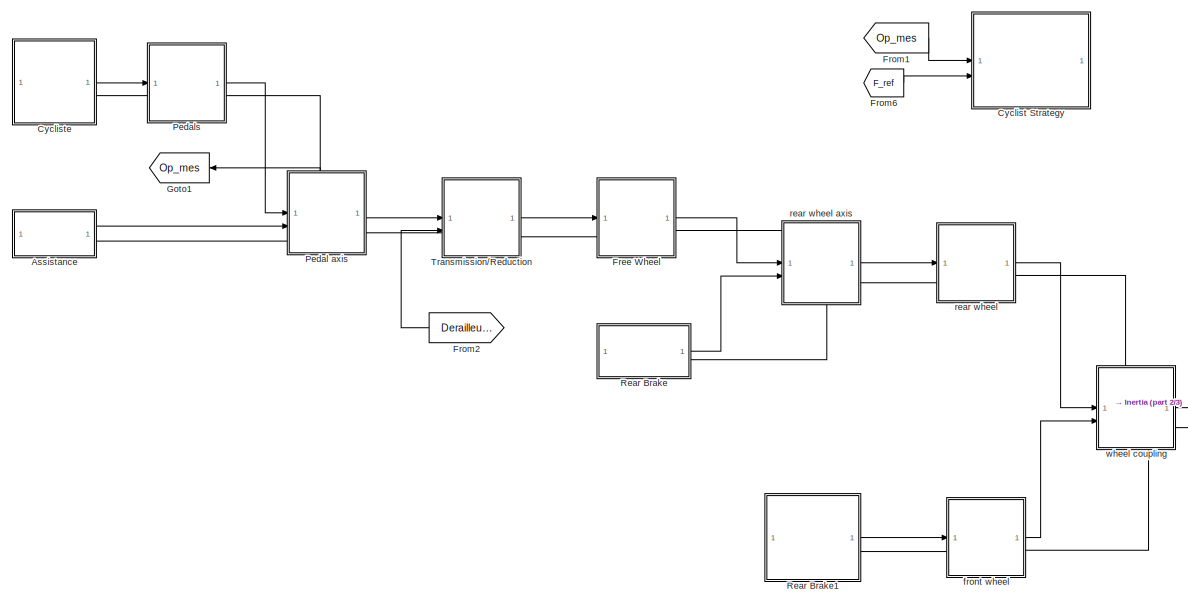
[diagram: root canvas - part 1/3, top center region]
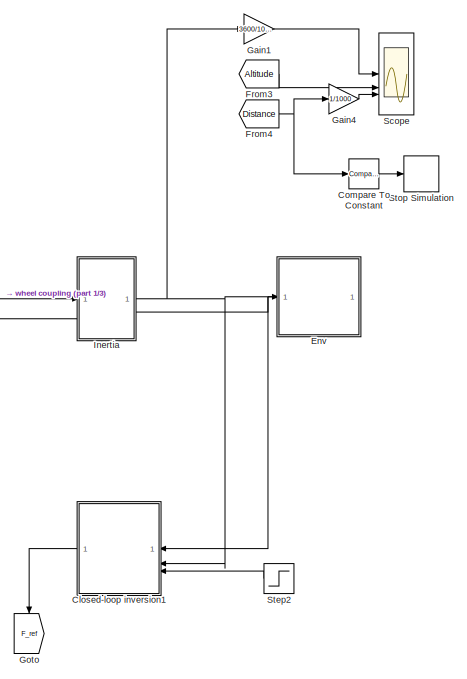
[diagram: root canvas - part 2/3, middle right region]
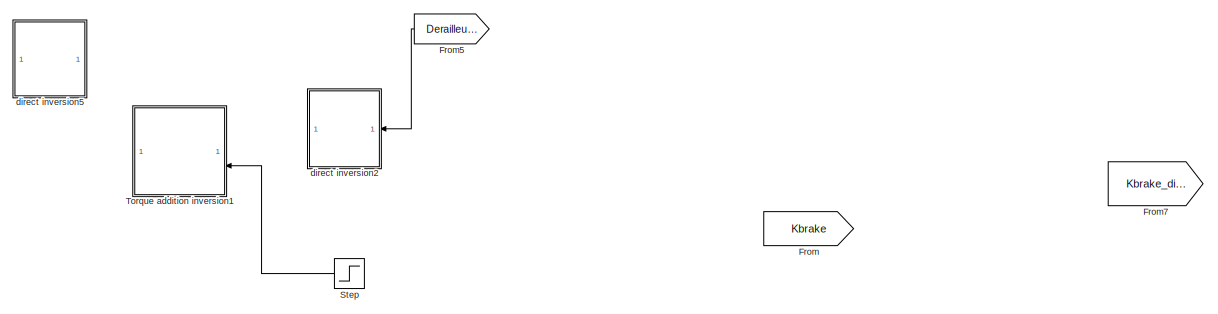
[diagram: root canvas - part 3/3, full width, bottom band]
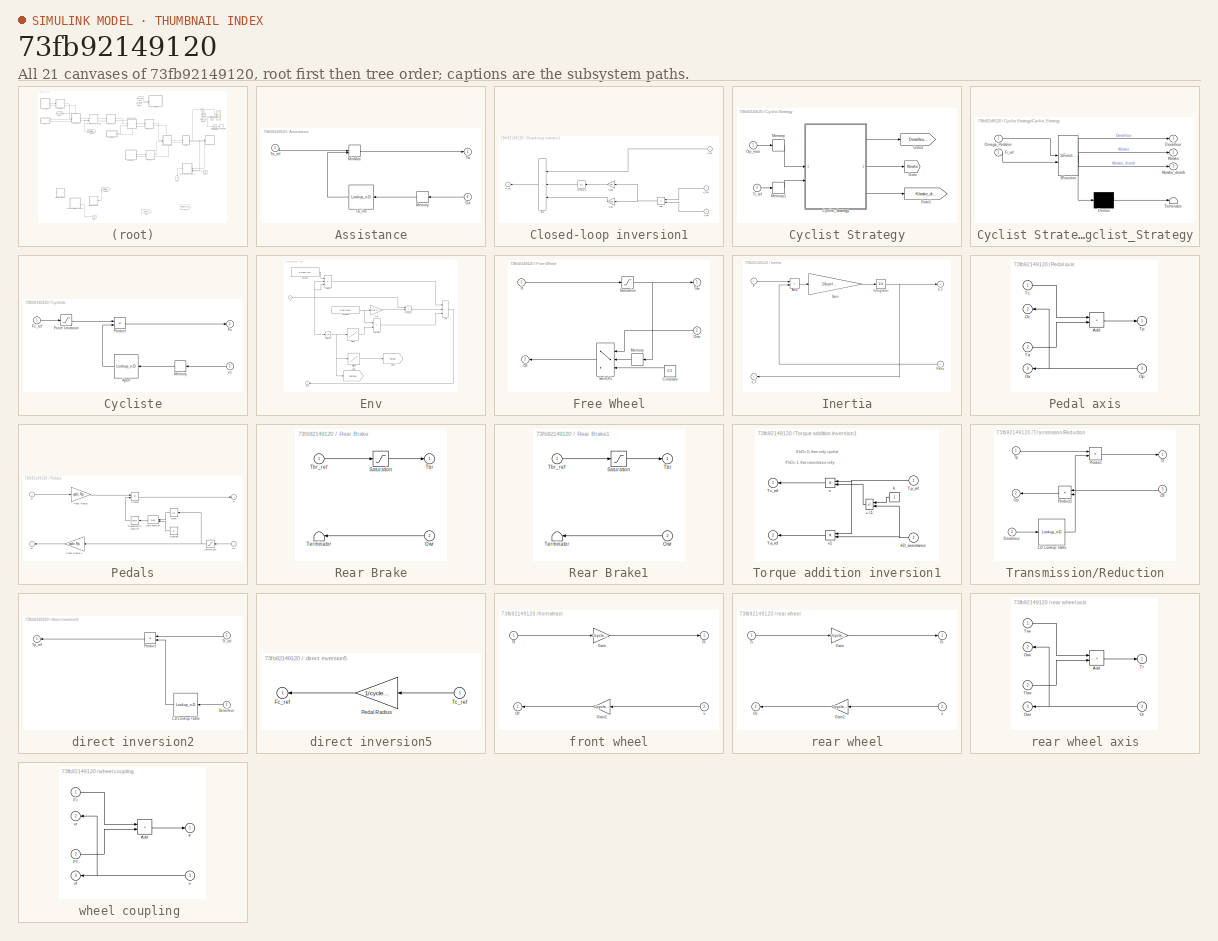
[diagram: thumbnail index - all 21 canvases of the model, root first then tree order]
MODEL slx_73fb92149120
KIND model
CONFIG AbsTol = auto
CONFIG EnableMultiTasking = on
CONFIG FixedStep = 1e-3
CONFIG InitFcn = Initialisation
CONFIG MaxStep = 0.01
CONFIG MinStep = auto
CONFIG RelTol = 1e-3
CONFIG SampleTimeConstraint = Unconstrained
CONFIG SolverName = ode45
CONFIG StartTime = 0
CONFIG StopTime = 4000
BLOCK [SubSystem] Assistance
  PortSchema = {"entries":[{"content":{"sides":[{"content":{"connectorIds":["In1"]},"type":"ConnectorPlacement.EquallySpacedRectSide","uuid":"b56ffd92-574d-4607-acc6-16a2c75d443c"},{"content":{"connectorIds":["Out1","In2"],"side":"RIGHT"},"type":"ConnectorPlacement.EquallySpacedRectSide","uuid":"f6ecf908-ce32-455d-b07b-39dcc8c170af"},{"content":{"side":"TOP"},"type":"ConnectorPlacement.EquallySpacedRectSide","uu...<+228ch>  <repeated x4 — deduplicated; at blocks: Assistance, Cycliste, Rear Brake, Rear Brake1>
BLOCK [Memory] Assistance/Memory
  NameLocation = top
BLOCK [MinMax] Assistance/MinMax
  Inputs = 2
BLOCK [Inport] Assistance/Oa
  Port = 2
BLOCK [Outport] Assistance/Ta
  InitialOutput = 0
  VectorParamsAs1DForOutWhenUnconnected = off
BLOCK [Lookup_n-D] Assistance/Ta_lim
  BreakpointsForDimension1 = assist.Op_ref
  InputPortMap = u0
  InternalRulePriority = Speed
  NameLocation = top
  NumberOfTableDimensions = 1
  RndMeth = Simplest
  Table = assist.Ta_lim
BLOCK [Inport] Assistance/Ta_ref
  NameLocation = top
BLOCK [SubSystem] Closed-loop inversion1
BLOCK [Sum] Closed-loop inversion1/Add
  IconShape = rectangular
  Inputs = -+
  NameLocation = top
BLOCK [Sum] Closed-loop inversion1/Add1
  IconShape = rectangular
  Inputs = +++
  NameLocation = top
BLOCK [Inport] Closed-loop inversion1/F_res
  NameLocation = top
BLOCK [Outport] Closed-loop inversion1/Fr_ref
  InitialOutput = 0
  VectorParamsAs1DForOutWhenUnconnected = off
BLOCK [Gain] Closed-loop inversion1/Gain
  Gain = 200.0
  NameLocation = top
BLOCK [Gain] Closed-loop inversion1/Gain1
  Gain = 10.0
  NameLocation = top
BLOCK [Integrator] Closed-loop inversion1/Integrator
  LimitOutput = on
  LowerSaturationLimit = -50
  NameLocation = top
  UpperSaturationLimit = 50
BLOCK [Inport] Closed-loop inversion1/V_mes
  NameLocation = top
  Port = 2
BLOCK [Inport] Closed-loop inversion1/V_ref
  Port = 3
BLOCK [Reference] Compare To Constant  REF=simulink/Logic and Bit
Operations/Compare
To Constant
  SourceBlock = simulink/Logic and Bit\nOperations/Compare\nTo Constant
  SourceType = Compare To Constant
BLOCK [SubSystem] Cyclist Strategy
  NameLocation = top
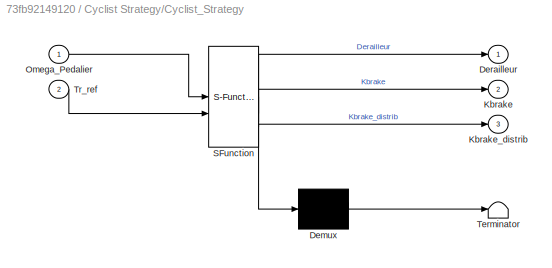
BLOCK [SubSystem] Cyclist Strategy/Cyclist_Strategy
  ErrorFcn = Stateflow.Translate.translate
  PermitHierarchicalResolution = ExplicitOnly
  SFBlockType = MATLAB Function
  TreatAsAtomicUnit = on
BLOCK [Demux] Cyclist Strategy/Cyclist_Strategy/ Demux 
  Outputs = 1
BLOCK [S-Function] Cyclist Strategy/Cyclist_Strategy/ SFunction 
  EnableBusSupport = off
  FunctionName = sf_sfun
  PortCounts = [2 4]
  SFcnIsStateOwnerBlock = off
  SFunctionDeploymentMode = off
  Tag = Stateflow S-Function 2
BLOCK [Terminator] Cyclist Strategy/Cyclist_Strategy/ Terminator 
BLOCK [Outport] Cyclist Strategy/Cyclist_Strategy/Derailleur
  VectorParamsAs1DForOutWhenUnconnected = off
BLOCK [Outport] Cyclist Strategy/Cyclist_Strategy/Kbrake
  Port = 2
  VectorParamsAs1DForOutWhenUnconnected = off
BLOCK [Outport] Cyclist Strategy/Cyclist_Strategy/Kbrake_distrib
  Port = 3
  VectorParamsAs1DForOutWhenUnconnected = off
BLOCK [Inport] Cyclist Strategy/Cyclist_Strategy/Omega_Pedalier
BLOCK [Inport] Cyclist Strategy/Cyclist_Strategy/Tr_ref
  Port = 2
BLOCK [Goto] Cyclist Strategy/Goto
  GotoTag = Kbrake
  TagVisibility = global
BLOCK [Goto] Cyclist Strategy/Goto1
  GotoTag = Kbrake_distribution
  TagVisibility = global
BLOCK [Goto] Cyclist Strategy/Goto2
  GotoTag = Derailleur_Def
  TagVisibility = global
BLOCK [Memory] Cyclist Strategy/Memory
BLOCK [Memory] Cyclist Strategy/Memory1
BLOCK [Inport] Cyclist Strategy/Op_mes
BLOCK [Inport] Cyclist Strategy/Tr_ref
  Port = 2
BLOCK [SubSystem] Cycliste
BLOCK [Outport] Cycliste/Fc
  InitialOutput = 0
  VectorParamsAs1DForOutWhenUnconnected = off
BLOCK [Inport] Cycliste/Fc_ref
  NameLocation = top
BLOCK [Saturate] Cycliste/Force limitation
  UpperLimit = cyclist.Fc_max
BLOCK [Lookup_n-D] Cycliste/Kperf
  BreakpointsForDimension1 = cyclist.Vref_ms
  InputPortMap = u0
  InternalRulePriority = Speed
  NameLocation = top
  NumberOfTableDimensions = 1
  RndMeth = Simplest
  Table = cyclist.Kperf
BLOCK [Memory] Cycliste/Memory
  NameLocation = top
BLOCK [Product] Cycliste/Product
BLOCK [Inport] Cycliste/vc
  Port = 2
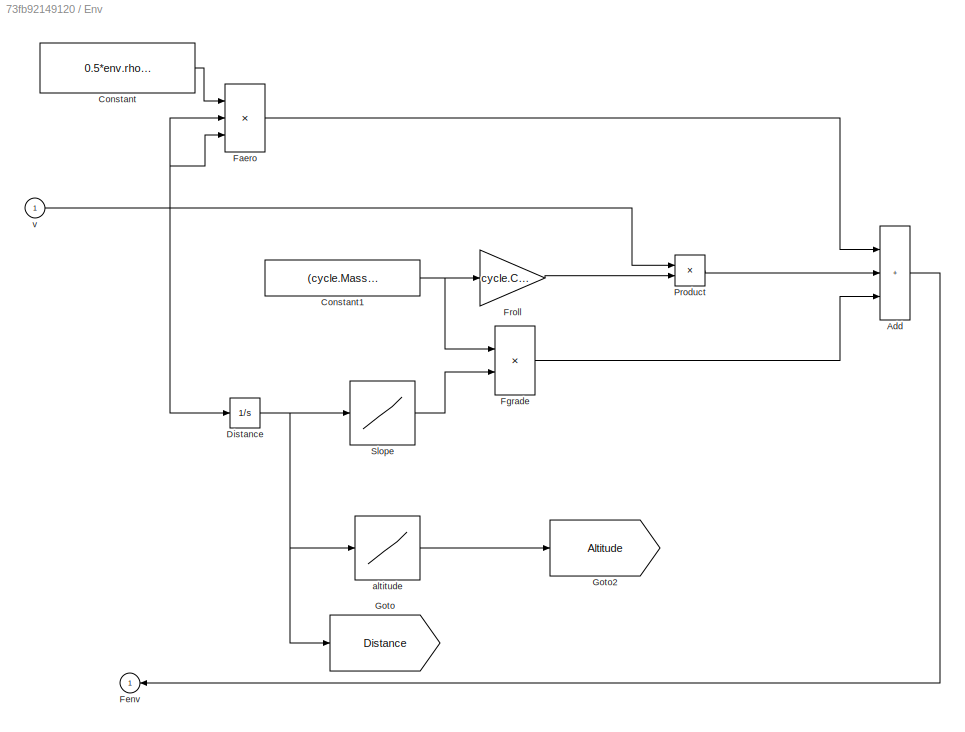
BLOCK [SubSystem] Env
  PortSchema = {"entries":[{"content":{"sides":[{"content":{"connectorIds":["In1","Out1"]},"type":"ConnectorPlacement.EquallySpacedRectSide","uuid":"efb178e0-fd11-4fb7-a64b-c244e17ad944"},{"content":{"side":"RIGHT"},"type":"ConnectorPlacement.EquallySpacedRectSide","uuid":"048bc3de-e770-4428-8bc0-9ded25c58069"},{"content":{"side":"TOP"},"type":"ConnectorPlacement.EquallySpacedRectSide","uuid":"cc8ec17b-6c54-4d76...<+205ch>
BLOCK [Sum] Env/Add
  IconShape = rectangular
  Inputs = +++
BLOCK [Constant] Env/Constant
  Value = 0.5*env.rho_air*cyclist.Scx
BLOCK [Constant] Env/Constant1
  Value = (cycle.Mass+cyclist.Mass)*env.g
BLOCK [Integrator] Env/Distance
BLOCK [Product] Env/Faero
  Inputs = 3
  RndMeth = Zero
BLOCK [Outport] Env/Fenv
  InitialOutput = 0
  NameLocation = top
  VectorParamsAs1DForOutWhenUnconnected = off
BLOCK [Product] Env/Fgrade
  RndMeth = Zero
BLOCK [Gain] Env/Froll
  Gain = cycle.Crr
BLOCK [Goto] Env/Goto
  GotoTag = Distance
  TagVisibility = global
BLOCK [Goto] Env/Goto2
  GotoTag = Altitude
  TagVisibility = global
BLOCK [Product] Env/Product
  RndMeth = Zero
BLOCK [Lookup] Env/Slope
  InputValues = env.Position
  LookUpMeth = Interpolation-Use End Values
  SaturateOnIntegerOverflow = off
  Table = env.Slope
BLOCK [Lookup] Env/altitude
  InputValues = env.Position
  LookUpMeth = Interpolation-Use End Values
  SaturateOnIntegerOverflow = off
  Table = env.Altitude
BLOCK [Inport] Env/v
BLOCK [SubSystem] Free Wheel
  PortSchema = {"entries":[{"content":{"sides":[{"content":{"connectorIds":["In1","Out2"]},"type":"ConnectorPlacement.EquallySpacedRectSide","uuid":"b9cb5e2e-d323-42b7-849c-39be921832eb"},{"content":{"connectorIds":["Out1","In2"],"side":"RIGHT"},"type":"ConnectorPlacement.EquallySpacedRectSide","uuid":"457911f2-4e07-4896-a1c0-9331a364b989"},{"content":{"side":"TOP"},"type":"ConnectorPlacement.EquallySpacedRectSi...<+235ch>  <repeated x5 — deduplicated; at blocks: Free Wheel, Inertia, Pedals, front wheel, rear wheel>
BLOCK [Constant] Free Wheel/Constant
  NameLocation = top
  Value = 0.0
BLOCK [Memory] Free Wheel/Memory
  NameLocation = top
BLOCK [Outport] Free Wheel/Of
  InitialOutput = 0
  Port = 2
  VectorParamsAs1DForOutWhenUnconnected = off
BLOCK [Inport] Free Wheel/Orw
  Port = 2
BLOCK [Saturate] Free Wheel/Saturation
  LowerLimit = -1e-6
  UpperLimit = Inf
BLOCK [Switch] Free Wheel/Switch1
  InputSameDT = off
  NameLocation = top
  SaturateOnIntegerOverflow = off
BLOCK [Inport] Free Wheel/Tf
BLOCK [Outport] Free Wheel/Trw
  InitialOutput = 0
  VectorParamsAs1DForOutWhenUnconnected = off
BLOCK [From] From
  GotoTag = Kbrake
  NameLocation = top
  TagVisibility = global
BLOCK [From] From1
  GotoTag = Op_mes
BLOCK [From] From2
  GotoTag = Derailleur_Def
  NameLocation = top
  TagVisibility = global
BLOCK [From] From3
  GotoTag = Altitude
  TagVisibility = global
BLOCK [From] From4
  GotoTag = Distance
  TagVisibility = global
BLOCK [From] From5
  GotoTag = Derailleur_Def
  NameLocation = top
  TagVisibility = global
BLOCK [From] From6
  GotoTag = F_ref
  TagVisibility = global
BLOCK [From] From7
  GotoTag = Kbrake_distribution
  NameLocation = top
  TagVisibility = global
BLOCK [Gain] Gain1
  Gain = 3600/1000
BLOCK [Gain] Gain4
  Gain = 1/1000
BLOCK [Goto] Goto
  GotoTag = F_ref
  NameLocation = left
  TagVisibility = global
BLOCK [Goto] Goto1
  GotoTag = Op_mes
  NameLocation = top
BLOCK [SubSystem] Inertia
BLOCK [Sum] Inertia/Add
  IconShape = rectangular
  Inputs = +-
BLOCK [Inport] Inertia/F
BLOCK [Inport] Inertia/Fenv
  Port = 2
BLOCK [Gain] Inertia/Gain
  Gain = 1/(cycle.Mass+cyclist.Mass)
BLOCK [Integrator] Inertia/Integrator
BLOCK [Outport] Inertia/v_1
  InitialOutput = 0
  VectorParamsAs1DForOutWhenUnconnected = off
BLOCK [Outport] Inertia/v_2
  InitialOutput = 0
  Port = 2
  VectorParamsAs1DForOutWhenUnconnected = off
BLOCK [SubSystem] Pedal axis
  PortSchema = {"entries":[{"content":{"sides":[{"content":{"connectorIds":["In1","Out2","In2","Out3"]},"type":"ConnectorPlacement.EquallySpacedRectSide","uuid":"f16583be-6f77-4af9-a4a7-96a07c773c93"},{"content":{"connectorIds":["Out1","In3"],"side":"RIGHT"},"type":"ConnectorPlacement.EquallySpacedRectSide","uuid":"40fed825-d3a5-4924-86df-6135f0ba2178"},{"content":{"side":"TOP"},"type":"ConnectorPlacement.Equall...<+248ch>  <repeated x3 — deduplicated; at blocks: Pedal axis, rear wheel axis, wheel coupling>
BLOCK [Sum] Pedal axis/Add
  IconShape = rectangular
BLOCK [Outport] Pedal axis/Oa
  InitialOutput = 0
  Port = 3
  VectorParamsAs1DForOutWhenUnconnected = off
BLOCK [Outport] Pedal axis/Oc
  InitialOutput = 0
  NameLocation = top
  Port = 2
  VectorParamsAs1DForOutWhenUnconnected = off
BLOCK [Inport] Pedal axis/Op
  Port = 3
BLOCK [Inport] Pedal axis/Ta
  NameLocation = top
  Port = 2
BLOCK [Inport] Pedal axis/Tc
BLOCK [Outport] Pedal axis/Tp
  InitialOutput = 0
  VectorParamsAs1DForOutWhenUnconnected = off
BLOCK [SubSystem] Pedals
BLOCK [Constant] Pedals/Constant
  NameLocation = top
  Value = pi
BLOCK [Inport] Pedals/Fc
BLOCK [Math] Pedals/Math Function
  NameLocation = top
  Operator = mod
  SignedPower = on
BLOCK [Inport] Pedals/Oc
  Port = 2
BLOCK [Gain] Pedals/Pedal Radius
  Gain = cycle.Rp
BLOCK [Gain] Pedals/Pedal Radius 1
  Gain = cycle.Rp
  NameLocation = top
BLOCK [Product] Pedals/Product
BLOCK [Saturate] Pedals/Saturation1
  LowerLimit = 1e-3
  NameLocation = top
  UpperLimit = Inf
BLOCK [Outport] Pedals/Tc
  InitialOutput = 0
  VectorParamsAs1DForOutWhenUnconnected = off
BLOCK [Trigonometry] Pedals/Trigonometric Function
  NameLocation = top
BLOCK [Integrator] Pedals/alpha
  InitialCondition = pi/2
  NameLocation = top
BLOCK [Outport] Pedals/vc
  InitialOutput = 0
  Port = 2
  VectorParamsAs1DForOutWhenUnconnected = off
BLOCK [SubSystem] Rear Brake
BLOCK [Inport] Rear Brake/Owr
  NameLocation = top
  Port = 2
BLOCK [Saturate] Rear Brake/Saturation
  LowerLimit = -1e3
  UpperLimit = 0
BLOCK [Outport] Rear Brake/Tbr
  InitialOutput = 0
  VectorParamsAs1DForOutWhenUnconnected = off
BLOCK [Inport] Rear Brake/Tbr_ref
BLOCK [Terminator] Rear Brake/Terminator
  NameLocation = top
BLOCK [SubSystem] Rear Brake1
BLOCK [Inport] Rear Brake1/Owr
  NameLocation = top
  Port = 2
BLOCK [Saturate] Rear Brake1/Saturation
  LowerLimit = -1e3
  UpperLimit = 0
BLOCK [Outport] Rear Brake1/Tbr
  InitialOutput = 0
  VectorParamsAs1DForOutWhenUnconnected = off
BLOCK [Inport] Rear Brake1/Tbr_ref
BLOCK [Terminator] Rear Brake1/Terminator
  NameLocation = top
BLOCK [Scope] Scope
  ActiveDisplayYMaximum = 16.875
  ActiveDisplayYMinimum = -1.875
  DataLoggingDecimateData = on
  DataLoggingDecimation = 1
  DataLoggingSaveFormat = Structure With Time
  Floating = off
  GraphicalSettings = {"GraphicalSettings":{"LegacySettings":true,"Style":{"AxesScalingProperties":{"ScaleAxesLimitsAtStop":false},"Style":{"AxesColor":"[0 0 0]","ChannelNames":["","",""],"ColorOrder":"[1 1 0.0666666666666667;0.0745098039215686 0.623529411764706 1;1 0.411764705882353 0.16078431372549;0.392156862745098 0.831372549019608 0.0745098039215686;0.717647058823529 0.274509803921569 1;0.0588235294117647 1 1;1 0....<+486ch>
  LayoutDimensionsString = [3 1]
  MultipleDisplayCache = [{"MaxYLimMag":16.875,"MaxYLimReal":16.875,"MinYLimMag":0,"MinYLimReal":-1.875,"PlotAsMagnitudePhase":false,"ShowGrid":true,"ShowLegend":false,"Title":"Speed (km\/h)","YLabel":""},{"MaxYLimMag":10,"MaxYLimReal":583.20923,"MinYLimMag":0,"MinYLimReal":480.75472,"PlotAsMagnitudePhase":false,"ShowGrid":true,"ShowLegend":false,"Title":"Altitude (m)","YLabel":""},{"MaxYLimMag":10,"MaxYLimReal":9.9,"MinY...<+130ch>
  NumInputPorts = 3
  Title = Speed (km/h)
  WasSavedAsWebScope = on
  WindowPosition = [148 -118 1280 945]
BLOCK [Step] Step
  After = 0.25
  NameLocation = top
  SampleTime = 0
  Time = 800
BLOCK [Step] Step2
  After = 15000/3600
  Before = 0/3600
  NameLocation = top
  SampleTime = 0
  Time = 5.0
BLOCK [Stop] Stop Simulation
BLOCK [SubSystem] Torque addition inversion1
BLOCK [Sum] Torque addition inversion1/+//-1
  IconShape = rectangular
  InputSameDT = on
  Inputs = +-
  NameLocation = top
  OutDataTypeStr = Inherit: Same as first input
  SaturateOnIntegerOverflow = on
BLOCK [Outport] Torque addition inversion1/Ta_ref
  InitialOutput = 0
  Port = 2
  VectorParamsAs1DForOutWhenUnconnected = off
BLOCK [Outport] Torque addition inversion1/Tc_ref
  InitialOutput = 0
  VectorParamsAs1DForOutWhenUnconnected = off
BLOCK [Inport] Torque addition inversion1/Tp_ref
BLOCK [Constant] Torque addition inversion1/k
BLOCK [Inport] Torque addition inversion1/kD_assistance
  Port = 2
BLOCK [Product] Torque addition inversion1/x
  InputSameDT = on
  NameLocation = top
  OutDataTypeStr = Inherit: Same as first input
  SaturateOnIntegerOverflow = on
BLOCK [Product] Torque addition inversion1/x1
  InputSameDT = on
  NameLocation = top
  OutDataTypeStr = Inherit: Same as first input
  SaturateOnIntegerOverflow = on
BLOCK [SubSystem] Transmission//Reduction
  PortSchema = {"entries":[{"content":{"sides":[{"content":{"connectorIds":["In1","Out2","In2"]},"type":"ConnectorPlacement.EquallySpacedRectSide","uuid":"984053de-e79d-49a0-956b-2805f1bca603"},{"content":{"connectorIds":["Out1","In3"],"side":"RIGHT"},"type":"ConnectorPlacement.EquallySpacedRectSide","uuid":"4ee9bc35-ba8a-4ab9-8456-8b7f51d0f2b4"},{"content":{"side":"TOP"},"type":"ConnectorPlacement.EquallySpaced...<+241ch>
BLOCK [Lookup_n-D] Transmission//Reduction/1-D Lookup Table
  BreakpointsForDimension1 = 1:1:10
  InputPortMap = u0
  InternalRulePriority = Speed
  NumberOfTableDimensions = 1
  RndMeth = Simplest
  Table = cycle.Speed
BLOCK [Inport] Transmission//Reduction/Derailleur
  NameLocation = top
  Port = 2
BLOCK [Inport] Transmission//Reduction/Of
  Port = 3
BLOCK [Outport] Transmission//Reduction/Op
  InitialOutput = 0
  Port = 2
  VectorParamsAs1DForOutWhenUnconnected = off
BLOCK [Product] Transmission//Reduction/Product
  RndMeth = Zero
BLOCK [Product] Transmission//Reduction/Product1
  NameLocation = top
  RndMeth = Zero
BLOCK [Outport] Transmission//Reduction/Tf
  InitialOutput = 0
  VectorParamsAs1DForOutWhenUnconnected = off
BLOCK [Inport] Transmission//Reduction/Tp
BLOCK [SubSystem] direct inversion2
BLOCK [Lookup_n-D] direct inversion2/1-D Lookup Table
  BreakpointsForDimension1 = 1:1:10
  InputPortMap = u0
  InternalRulePriority = Speed
  NameLocation = top
  NumberOfTableDimensions = 1
  RndMeth = Simplest
  Table = cycle.Speed
BLOCK [Inport] direct inversion2/Derailleur
BLOCK [Product] direct inversion2/Product
  Inputs = */
  NameLocation = top
  RndMeth = Zero
BLOCK [Inport] direct inversion2/Tf_ref
  NameLocation = top
  Port = 2
BLOCK [Outport] direct inversion2/Tp_ref
  InitialOutput = 0
  NameLocation = top
  VectorParamsAs1DForOutWhenUnconnected = off
BLOCK [SubSystem] direct inversion5
BLOCK [Outport] direct inversion5/Fc_ref
  InitialOutput = 0
  VectorParamsAs1DForOutWhenUnconnected = off
BLOCK [Gain] direct inversion5/Pedal Radius
  Gain = 1/cycle.Rp
  NameLocation = top
BLOCK [Inport] direct inversion5/Tc_ref
  NameLocation = top
BLOCK [SubSystem] front wheel
BLOCK [Outport] front wheel/Ff
  InitialOutput = 0
  VectorParamsAs1DForOutWhenUnconnected = off
BLOCK [Gain] front wheel/Gain
  Gain = 1/cycle.Rw
BLOCK [Gain] front wheel/Gain1
  Gain = 1/cycle.Rw
  NameLocation = top
BLOCK [Outport] front wheel/Of
  InitialOutput = 0
  Port = 2
  VectorParamsAs1DForOutWhenUnconnected = off
BLOCK [Inport] front wheel/Tf
BLOCK [Inport] front wheel/v
  Port = 2
BLOCK [SubSystem] rear wheel
BLOCK [SubSystem] rear wheel axis
BLOCK [Sum] rear wheel axis/Add
  IconShape = rectangular
BLOCK [Inport] rear wheel axis/Or
  Port = 3
BLOCK [Outport] rear wheel axis/Orw
  InitialOutput = 0
  NameLocation = top
  Port = 2
  VectorParamsAs1DForOutWhenUnconnected = off
BLOCK [Outport] rear wheel axis/Owr
  InitialOutput = 0
  Port = 3
  VectorParamsAs1DForOutWhenUnconnected = off
BLOCK [Inport] rear wheel axis/Tbw
  NameLocation = top
  Port = 2
BLOCK [Outport] rear wheel axis/Tr
  InitialOutput = 0
  VectorParamsAs1DForOutWhenUnconnected = off
BLOCK [Inport] rear wheel axis/Trw
BLOCK [Outport] rear wheel/Fr
  InitialOutput = 0
  VectorParamsAs1DForOutWhenUnconnected = off
BLOCK [Gain] rear wheel/Gain
  Gain = 1/cycle.Rw
BLOCK [Gain] rear wheel/Gain1
  Gain = 1/cycle.Rw
  NameLocation = top
BLOCK [Outport] rear wheel/Or
  InitialOutput = 0
  Port = 2
  VectorParamsAs1DForOutWhenUnconnected = off
BLOCK [Inport] rear wheel/Tr
BLOCK [Inport] rear wheel/v
  Port = 2
BLOCK [SubSystem] wheel coupling 
BLOCK [Sum] wheel coupling /Add
  IconShape = rectangular
BLOCK [Outport] wheel coupling /F
  InitialOutput = 0
  VectorParamsAs1DForOutWhenUnconnected = off
BLOCK [Inport] wheel coupling /Ff
  NameLocation = top
  Port = 2
BLOCK [Inport] wheel coupling /Fr
BLOCK [Inport] wheel coupling /v
  Port = 3
BLOCK [Outport] wheel coupling /vf
  InitialOutput = 0
  Port = 3
  VectorParamsAs1DForOutWhenUnconnected = off
BLOCK [Outport] wheel coupling /vr
  InitialOutput = 0
  NameLocation = top
  Port = 2
  VectorParamsAs1DForOutWhenUnconnected = off
ANNOTATION Torque addition inversion1: If kD=0, then only cyclist
ANNOTATION Torque addition inversion1: If kD=1, then assistance only
LINE Assistance/Memory:1 -> Assistance/Ta_lim:1
LINE Assistance/MinMax:1 -> Assistance/Ta:1
LINE Assistance/Oa:1 -> Assistance/Memory:1
LINE Assistance/Ta_lim:1 -> Assistance/MinMax:2
LINE Assistance/Ta_ref:1 -> Assistance/MinMax:1
LINE Assistance:1 -> Pedal axis:2
LINE Closed-loop inversion1/Add1:1 -> Closed-loop inversion1/Fr_ref:1
NET Closed-loop inversion1/Add:1 -> Closed-loop inversion1/Gain1:1, Closed-loop inversion1/Gain:1
LINE Closed-loop inversion1/F_res:1 -> Closed-loop inversion1/Add1:1
LINE Closed-loop inversion1/Gain1:1 -> Closed-loop inversion1/Integrator:1
LINE Closed-loop inversion1/Gain:1 -> Closed-loop inversion1/Add1:3
LINE Closed-loop inversion1/Integrator:1 -> Closed-loop inversion1/Add1:2
LINE Closed-loop inversion1/V_mes:1 -> Closed-loop inversion1/Add:1
LINE Closed-loop inversion1/V_ref:1 -> Closed-loop inversion1/Add:2
LINE Closed-loop inversion1:1 -> Goto:1
LINE Compare To Constant:1 -> Stop Simulation:1
LINE Cyclist Strategy/Cyclist_Strategy:1 -> Cyclist Strategy/Goto2:1
LINE Cyclist Strategy/Cyclist_Strategy:2 -> Cyclist Strategy/Goto:1
LINE Cyclist Strategy/Cyclist_Strategy:3 -> Cyclist Strategy/Goto1:1
LINE Cyclist Strategy/Memory1:1 -> Cyclist Strategy/Cyclist_Strategy:2
LINE Cyclist Strategy/Memory:1 -> Cyclist Strategy/Cyclist_Strategy:1
LINE Cyclist Strategy/Op_mes:1 -> Cyclist Strategy/Memory:1
LINE Cyclist Strategy/Tr_ref:1 -> Cyclist Strategy/Memory1:1
LINE Cycliste/Fc_ref:1 -> Cycliste/Force limitation:1
LINE Cycliste/Force limitation:1 -> Cycliste/Product:1
LINE Cycliste/Kperf:1 -> Cycliste/Product:2
LINE Cycliste/Memory:1 -> Cycliste/Kperf:1
LINE Cycliste/Product:1 -> Cycliste/Fc:1
LINE Cycliste/vc:1 -> Cycliste/Memory:1
LINE Cycliste:1 -> Pedals:1
LINE Env/Add:1 -> Env/Fenv:1
NET Env/Constant1:1 -> Env/Fgrade:1, Env/Froll:1
LINE Env/Constant:1 -> Env/Faero:1
NET Env/Distance:1 -> Env/Goto:1, Env/Slope:1, Env/altitude:1
LINE Env/Faero:1 -> Env/Add:1
LINE Env/Fgrade:1 -> Env/Add:3
LINE Env/Froll:1 -> Env/Product:2
LINE Env/Product:1 -> Env/Add:2
LINE Env/Slope:1 -> Env/Fgrade:2
LINE Env/altitude:1 -> Env/Goto2:1
NET Env/v:1 -> Env/Distance:1, Env/Faero:2, Env/Faero:3, Env/Product:1
NET Env:1 -> Closed-loop inversion1:1, Inertia:2
LINE Free Wheel/Constant:1 -> Free Wheel/Switch1:3
LINE Free Wheel/Memory:1 -> Free Wheel/Switch1:2
LINE Free Wheel/Orw:1 -> Free Wheel/Switch1:1
NET Free Wheel/Saturation:1 -> Free Wheel/Memory:1, Free Wheel/Trw:1
LINE Free Wheel/Switch1:1 -> Free Wheel/Of:1
LINE Free Wheel/Tf:1 -> Free Wheel/Saturation:1
LINE Free Wheel:1 -> rear wheel axis:1
LINE Free Wheel:2 -> Transmission//Reduction:3
LINE From1:1 -> Cyclist Strategy:1
LINE From2:1 -> Transmission//Reduction:2
LINE From3:1 -> Scope:2
NET From4:1 -> Compare To Constant:1, Gain4:1
LINE From5:1 -> direct inversion2:1
LINE From6:1 -> Cyclist Strategy:2
LINE Gain1:1 -> Scope:1
LINE Gain4:1 -> Scope:3
LINE Inertia/Add:1 -> Inertia/Gain:1
LINE Inertia/F:1 -> Inertia/Add:1
LINE Inertia/Fenv:1 -> Inertia/Add:2
LINE Inertia/Gain:1 -> Inertia/Integrator:1
NET Inertia/Integrator:1 -> Inertia/v_1:1, Inertia/v_2:1
NET Inertia:1 -> Closed-loop inversion1:2, Env:1, Gain1:1
LINE Inertia:2 -> wheel coupling :3
LINE Pedal axis/Add:1 -> Pedal axis/Tp:1
NET Pedal axis/Op:1 -> Pedal axis/Oa:1, Pedal axis/Oc:1
LINE Pedal axis/Ta:1 -> Pedal axis/Add:2
LINE Pedal axis/Tc:1 -> Pedal axis/Add:1
LINE Pedal axis:1 -> Transmission//Reduction:1
NET Pedal axis:2 -> Goto1:1, Pedals:2
LINE Pedal axis:3 -> Assistance:2
LINE Pedals/Constant:1 -> Pedals/Math Function:2
LINE Pedals/Fc:1 -> Pedals/Pedal Radius:1
LINE Pedals/Math Function:1 -> Pedals/Trigonometric Function:1
LINE Pedals/Oc:1 -> Pedals/Saturation1:1
LINE Pedals/Pedal Radius 1:1 -> Pedals/vc:1
LINE Pedals/Pedal Radius:1 -> Pedals/Product:1
LINE Pedals/Product:1 -> Pedals/Tc:1
NET Pedals/Saturation1:1 -> Pedals/Pedal Radius 1:1, Pedals/alpha:1
LINE Pedals/Trigonometric Function:1 -> Pedals/Product:2
LINE Pedals/alpha:1 -> Pedals/Math Function:1
LINE Pedals:1 -> Pedal axis:1
LINE Pedals:2 -> Cycliste:2
LINE Rear Brake/Owr:1 -> Rear Brake/Terminator:1
LINE Rear Brake/Saturation:1 -> Rear Brake/Tbr:1
LINE Rear Brake/Tbr_ref:1 -> Rear Brake/Saturation:1
LINE Rear Brake1/Owr:1 -> Rear Brake1/Terminator:1
LINE Rear Brake1/Saturation:1 -> Rear Brake1/Tbr:1
LINE Rear Brake1/Tbr_ref:1 -> Rear Brake1/Saturation:1
LINE Rear Brake1:1 -> front wheel:1
LINE Rear Brake:1 -> rear wheel axis:2
LINE Step2:1 -> Closed-loop inversion1:3
LINE Step:1 -> Torque addition inversion1:2
LINE Torque addition inversion1/+//-1:1 -> Torque addition inversion1/x:2
NET Torque addition inversion1/Tp_ref:1 -> Torque addition inversion1/x1:1, Torque addition inversion1/x:1
LINE Torque addition inversion1/k:1 -> Torque addition inversion1/+//-1:1
NET Torque addition inversion1/kD_assistance:1 -> Torque addition inversion1/+//-1:2, Torque addition inversion1/x1:2
LINE Torque addition inversion1/x1:1 -> Torque addition inversion1/Ta_ref:1
LINE Torque addition inversion1/x:1 -> Torque addition inversion1/Tc_ref:1
NET Transmission//Reduction/1-D Lookup Table:1 -> Transmission//Reduction/Product1:2, Transmission//Reduction/Product:2
LINE Transmission//Reduction/Derailleur:1 -> Transmission//Reduction/1-D Lookup Table:1
LINE Transmission//Reduction/Of:1 -> Transmission//Reduction/Product1:1
LINE Transmission//Reduction/Product1:1 -> Transmission//Reduction/Op:1
LINE Transmission//Reduction/Product:1 -> Transmission//Reduction/Tf:1
LINE Transmission//Reduction/Tp:1 -> Transmission//Reduction/Product:1
LINE Transmission//Reduction:1 -> Free Wheel:1
LINE Transmission//Reduction:2 -> Pedal axis:3
LINE direct inversion2/1-D Lookup Table:1 -> direct inversion2/Product:2
LINE direct inversion2/Derailleur:1 -> direct inversion2/1-D Lookup Table:1
LINE direct inversion2/Product:1 -> direct inversion2/Tp_ref:1
LINE direct inversion2/Tf_ref:1 -> direct inversion2/Product:1
LINE direct inversion5/Pedal Radius:1 -> direct inversion5/Fc_ref:1
LINE direct inversion5/Tc_ref:1 -> direct inversion5/Pedal Radius:1
LINE front wheel/Gain1:1 -> front wheel/Of:1
LINE front wheel/Gain:1 -> front wheel/Ff:1
LINE front wheel/Tf:1 -> front wheel/Gain:1
LINE front wheel/v:1 -> front wheel/Gain1:1
LINE front wheel:1 -> wheel coupling :2
LINE front wheel:2 -> Rear Brake1:2
LINE rear wheel axis/Add:1 -> rear wheel axis/Tr:1
NET rear wheel axis/Or:1 -> rear wheel axis/Orw:1, rear wheel axis/Owr:1
LINE rear wheel axis/Tbw:1 -> rear wheel axis/Add:2
LINE rear wheel axis/Trw:1 -> rear wheel axis/Add:1
LINE rear wheel axis:1 -> rear wheel:1
LINE rear wheel axis:2 -> Free Wheel:2
LINE rear wheel axis:3 -> Rear Brake:2
LINE rear wheel/Gain1:1 -> rear wheel/Or:1
LINE rear wheel/Gain:1 -> rear wheel/Fr:1
LINE rear wheel/Tr:1 -> rear wheel/Gain:1
LINE rear wheel/v:1 -> rear wheel/Gain1:1
LINE rear wheel:1 -> wheel coupling :1
LINE rear wheel:2 -> rear wheel axis:3
LINE wheel coupling /Add:1 -> wheel coupling /F:1
LINE wheel coupling /Ff:1 -> wheel coupling /Add:2
LINE wheel coupling /Fr:1 -> wheel coupling /Add:1
NET wheel coupling /v:1 -> wheel coupling /vf:1, wheel coupling /vr:1
LINE wheel coupling :1 -> Inertia:1
LINE wheel coupling :2 -> rear wheel:2
LINE wheel coupling :3 -> front wheel:2
note: NET lines group one-source signal fan-out (src -> all destinations, sorted); 1:1 wires keep LINE
CHART Cyclist Strategy/Cyclist_Strategy states=1 transitions=1
  STATE_LABEL 'eML_blk_kernel()'
  STATE_LABEL 'SCRIPT:\nfunction [Derailleur,Kbrake,Kbrake_distrib] = fcn(Omega_Pedalier,Tr_ref)\n\npersistent Derailleur_ref\n\nif isempty(Derailleur_ref)\n    Derailleur_ref = 1;\nend\n\n%% Speed management\nN_pedalier = Omega_Pedalier/2/pi;\nif N_pedalier>1.6\n    Derailleur = Derailleur_ref+1;\nelse\n    if N_pedalier<0.8\n        Derailleur = Derailleur_ref-1;\n    else\n        Derailleur = Derailleur_ref;\n    end\nend\n\nDer...<+223ch>'
CHART  states=0 transitions=0
